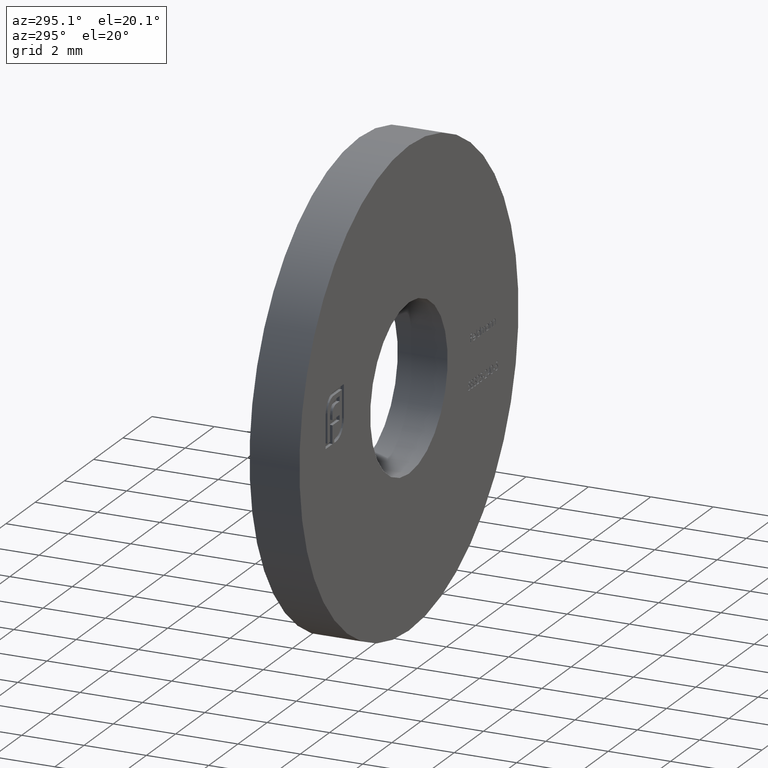
[diagram: clean part render]
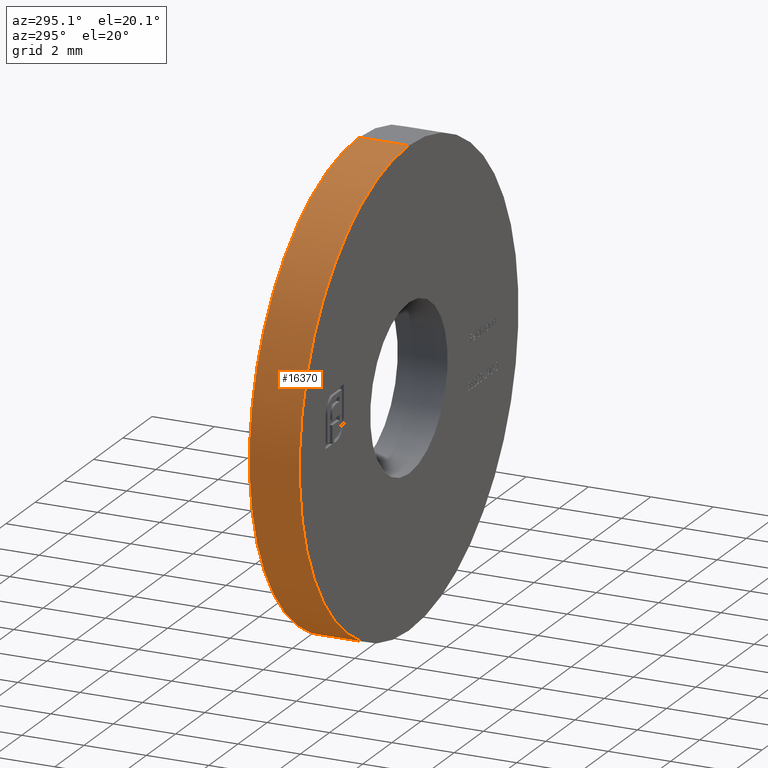
[diagram: same view with one face highlighted and labeled with its STEP entity id]
A machine part, auxiliary view. The second image highlights one B-rep face of the part: STEP entity #16370.
In plain terms, the highlighted cylindrical surface (partial cylindrical patch) has radius 7.5 mm, axis along (-0, -1, -0).
Its self-contained STEP definition (entity closure, byte-faithful):
#1537 = VECTOR ( 'NONE', #12238, 1000.000000000000000 ) ;
#1606 = VECTOR ( 'NONE', #6861, 1000.000000000000000 ) ;
#1786 = DIRECTION ( 'NONE',  ( 0.000000000000000000, 0.000000000000000000, 1.000000000000000000 ) ) ;
#1838 = CARTESIAN_POINT ( 'NONE',  ( 0.000000000000000000, 0.8000000000000000444, -7.500000000000000000 ) ) ;
#1889 = VERTEX_POINT ( 'NONE', #3774 ) ;
#2243 = CARTESIAN_POINT ( 'NONE',  ( 9.184850993605147944E-16, -0.8000000000000000444, 7.500000000000000000 ) ) ;
#2269 = ORIENTED_EDGE ( 'NONE', *, *, #12540, .T. ) ;
#2475 = EDGE_CURVE ( 'NONE', #1889, #10160, #6925, .T. ) ;
#3040 = DIRECTION ( 'NONE',  ( 0.000000000000000000, 1.000000000000000000, 0.000000000000000000 ) ) ;
#3362 = EDGE_CURVE ( 'NONE', #10160, #3455, #5501, .T. ) ;
#3455 = VERTEX_POINT ( 'NONE', #2243 ) ;
#3774 = CARTESIAN_POINT ( 'NONE',  ( 0.000000000000000000, 0.8000000000000000444, -7.500000000000000000 ) ) ;
#3842 = AXIS2_PLACEMENT_3D ( 'NONE', #12182, #3040, #1786 ) ;
#4258 = DIRECTION ( 'NONE',  ( 0.000000000000000000, 0.000000000000000000, -1.000000000000000000 ) ) ;
#5264 = CARTESIAN_POINT ( 'NONE',  ( 9.184850993605147944E-16, 0.8000000000000000444, 7.500000000000000000 ) ) ;
#5501 = LINE ( 'NONE', #15945, #1606 ) ;
#5626 = DIRECTION ( 'NONE',  ( -0.000000000000000000, -1.000000000000000000, -0.000000000000000000 ) ) ;
#6339 = DIRECTION ( 'NONE',  ( 0.000000000000000000, 1.000000000000000000, 0.000000000000000000 ) ) ;
#6588 = CYLINDRICAL_SURFACE ( 'NONE', #8250, 7.500000000000000000 ) ;
#6861 = DIRECTION ( 'NONE',  ( -0.000000000000000000, -1.000000000000000000, -0.000000000000000000 ) ) ;
#6925 = CIRCLE ( 'NONE', #3842, 7.500000000000000000 ) ;
#7904 = AXIS2_PLACEMENT_3D ( 'NONE', #11496, #6339, #7969 ) ;
#7969 = DIRECTION ( 'NONE',  ( 0.000000000000000000, 0.000000000000000000, 1.000000000000000000 ) ) ;
#8060 = LINE ( 'NONE', #1838, #1537 ) ;
#8107 = CARTESIAN_POINT ( 'NONE',  ( 0.000000000000000000, 0.8000000000000000444, 0.000000000000000000 ) ) ;
#8250 = AXIS2_PLACEMENT_3D ( 'NONE', #8107, #5626, #4258 ) ;
#8636 = VERTEX_POINT ( 'NONE', #16398 ) ;
#10160 = VERTEX_POINT ( 'NONE', #5264 ) ;
#11496 = CARTESIAN_POINT ( 'NONE',  ( 0.000000000000000000, -0.8000000000000000444, 0.000000000000000000 ) ) ;
#12182 = CARTESIAN_POINT ( 'NONE',  ( 0.000000000000000000, 0.8000000000000000444, 0.000000000000000000 ) ) ;
#12238 = DIRECTION ( 'NONE',  ( -0.000000000000000000, -1.000000000000000000, -0.000000000000000000 ) ) ;
#12540 = EDGE_CURVE ( 'NONE', #8636, #3455, #13105, .T. ) ;
#13025 = EDGE_LOOP ( 'NONE', ( #16298, #15252, #15235, #2269 ) ) ;
#13105 = CIRCLE ( 'NONE', #7904, 7.500000000000000000 ) ;
#13239 = EDGE_CURVE ( 'NONE', #1889, #8636, #8060, .T. ) ;
#13240 = FACE_OUTER_BOUND ( 'NONE', #13025, .T. ) ;
#15235 = ORIENTED_EDGE ( 'NONE', *, *, #13239, .T. ) ;
#15252 = ORIENTED_EDGE ( 'NONE', *, *, #2475, .F. ) ;
#15945 = CARTESIAN_POINT ( 'NONE',  ( 9.184850993605147944E-16, 0.8000000000000000444, 7.500000000000000000 ) ) ;
#16298 = ORIENTED_EDGE ( 'NONE', *, *, #3362, .F. ) ;
#16370 = ADVANCED_FACE ( 'NONE', ( #13240 ), #6588, .T. ) ;
#16398 = CARTESIAN_POINT ( 'NONE',  ( 0.000000000000000000, -0.8000000000000000444, -7.500000000000000000 ) ) ;